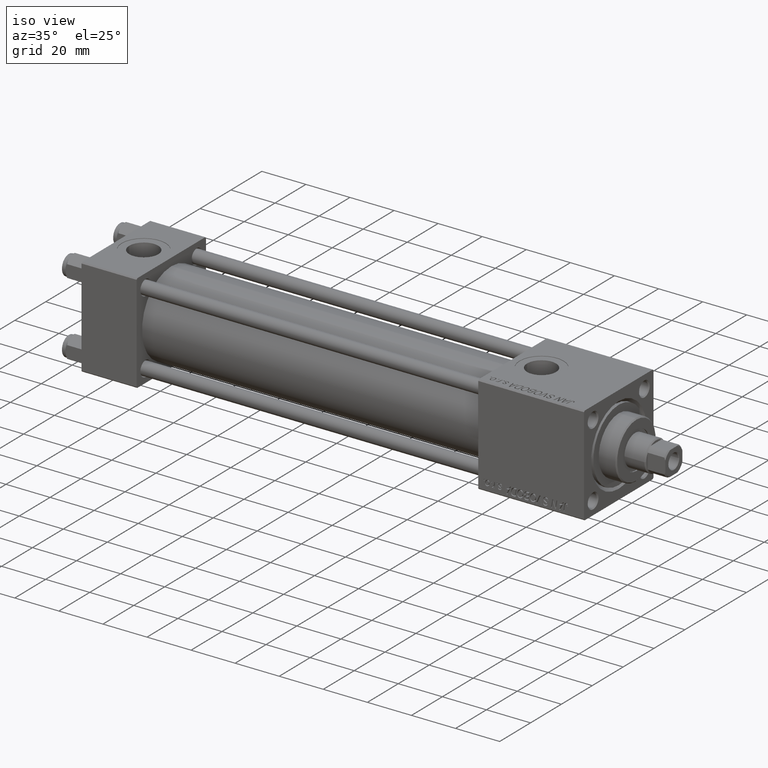
[diagram: clean part render]
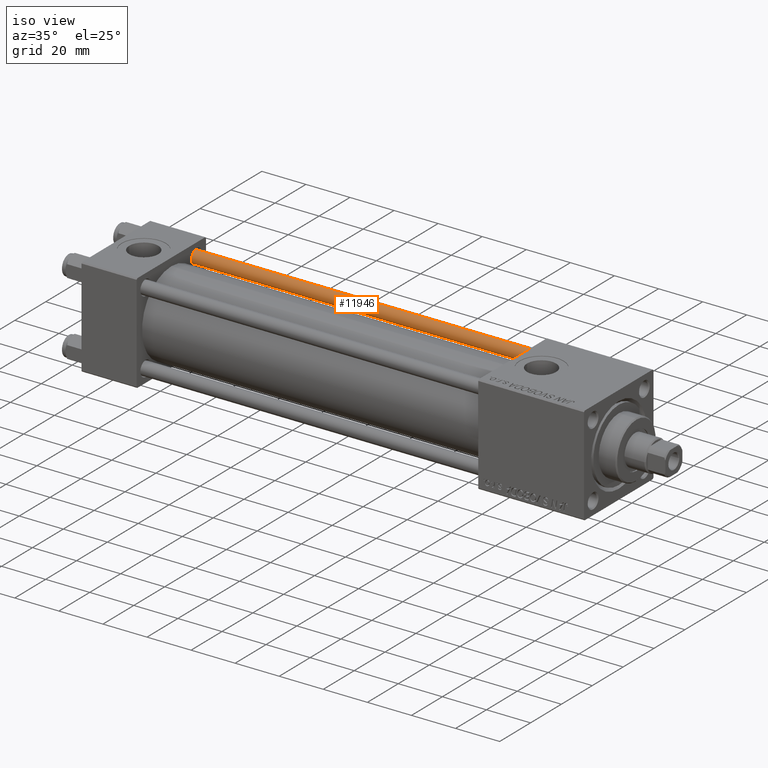
[diagram: same view with one face highlighted and labeled with its STEP entity id]
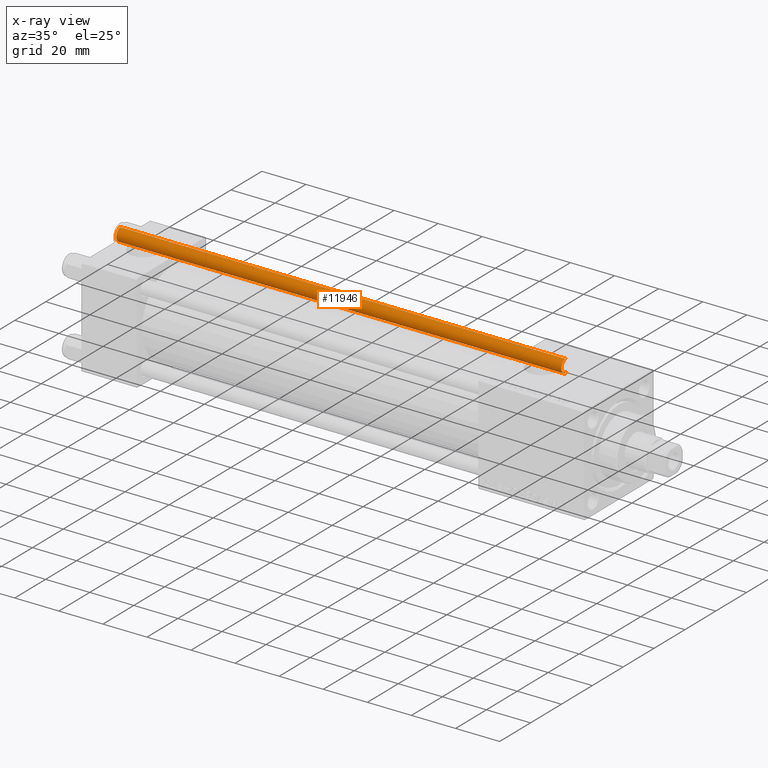
[diagram: x-ray of the same camera — body ghosted, the highlighted face saturated]
A machine part, iso view. The second image highlights one B-rep face of the part: STEP entity #11946.
The next image is the same camera in x-ray: the body ghosted, the highlighted face saturated — about 0% of this face is hidden behind the body in this view.
In plain terms, the highlighted cylindrical surface (edge-blend (fillet) strip) has radius 3 mm, axis along (-1, 0, 0).
Its self-contained STEP definition (entity closure, byte-faithful):
#386 = EDGE_CURVE ( 'NONE', #22499, #6661, #30112, .T. ) ;
#1240 = ORIENTED_EDGE ( 'NONE', *, *, #386, .F. ) ;
#1415 = AXIS2_PLACEMENT_3D ( 'NONE', #24226, #27928, #47474 ) ;
#3016 = ORIENTED_EDGE ( 'NONE', *, *, #41166, .T. ) ;
#5114 = CARTESIAN_POINT ( 'NONE',  ( -3.000000000000000444, 0.000000000000000000, 0.5000000000001114664 ) ) ;
#6661 = VERTEX_POINT ( 'NONE', #13414 ) ;
#6662 = DIRECTION ( 'NONE',  ( 0.000000000000000000, 0.000000000000000000, -1.000000000000000000 ) ) ;
#7156 = DIRECTION ( 'NONE',  ( 1.000000000000000000, 0.000000000000000000, 0.000000000000000000 ) ) ;
#11068 = DIRECTION ( 'NONE',  ( -0.000000000000000000, -0.000000000000000000, -1.000000000000000000 ) ) ;
#11946 = ADVANCED_FACE ( 'NONE', ( #52204 ), #12340, .T. ) ;
#12340 = CYLINDRICAL_SURFACE ( 'NONE', #1415, 3.000000000000000444 ) ;
#12487 = EDGE_CURVE ( 'NONE', #22499, #21866, #14888, .T. ) ;
#13216 = AXIS2_PLACEMENT_3D ( 'NONE', #23519, #6662, #22745 ) ;
#13414 = CARTESIAN_POINT ( 'NONE',  ( 3.000000000000000444, 3.673940397442059868E-16, 0.5000000000001114664 ) ) ;
#13914 = VECTOR ( 'NONE', #27429, 1000.000000000000000 ) ;
#14247 = CARTESIAN_POINT ( 'NONE',  ( 3.000000000000000444, 3.673940397442059868E-16, 203.0000000000000000 ) ) ;
#14291 = DIRECTION ( 'NONE',  ( -0.000000000000000000, -0.000000000000000000, 1.000000000000000000 ) ) ;
#14888 = CIRCLE ( 'NONE', #13216, 3.000000000000000444 ) ;
#16085 = CARTESIAN_POINT ( 'NONE',  ( -3.000000000000000444, 0.000000000000000000, 202.5000000000000853 ) ) ;
#16190 = ORIENTED_EDGE ( 'NONE', *, *, #38576, .T. ) ;
#17390 = AXIS2_PLACEMENT_3D ( 'NONE', #26193, #14291, #7156 ) ;
#21866 = VERTEX_POINT ( 'NONE', #16085 ) ;
#22499 = VERTEX_POINT ( 'NONE', #50833 ) ;
#22745 = DIRECTION ( 'NONE',  ( 1.000000000000000000, 0.000000000000000000, 0.000000000000000000 ) ) ;
#23519 = CARTESIAN_POINT ( 'NONE',  ( 0.000000000000000000, 0.000000000000000000, 202.5000000000000853 ) ) ;
#24226 = CARTESIAN_POINT ( 'NONE',  ( 0.000000000000000000, 0.000000000000000000, 203.0000000000000000 ) ) ;
#25689 = EDGE_LOOP ( 'NONE', ( #1240, #42023, #16190, #3016 ) ) ;
#26193 = CARTESIAN_POINT ( 'NONE',  ( 0.000000000000000000, 0.000000000000000000, 0.5000000000001114664 ) ) ;
#27429 = DIRECTION ( 'NONE',  ( -0.000000000000000000, -0.000000000000000000, -1.000000000000000000 ) ) ;
#27928 = DIRECTION ( 'NONE',  ( -0.000000000000000000, -0.000000000000000000, -1.000000000000000000 ) ) ;
#28756 = VERTEX_POINT ( 'NONE', #5114 ) ;
#30112 = LINE ( 'NONE', #14247, #35629 ) ;
#35629 = VECTOR ( 'NONE', #11068, 1000.000000000000000 ) ;
#38576 = EDGE_CURVE ( 'NONE', #21866, #28756, #52226, .T. ) ;
#39316 = CARTESIAN_POINT ( 'NONE',  ( -3.000000000000000444, 0.000000000000000000, 203.0000000000000000 ) ) ;
#40142 = CIRCLE ( 'NONE', #17390, 3.000000000000000444 ) ;
#41166 = EDGE_CURVE ( 'NONE', #28756, #6661, #40142, .T. ) ;
#42023 = ORIENTED_EDGE ( 'NONE', *, *, #12487, .T. ) ;
#47474 = DIRECTION ( 'NONE',  ( -1.000000000000000000, 0.000000000000000000, 0.000000000000000000 ) ) ;
#50833 = CARTESIAN_POINT ( 'NONE',  ( 3.000000000000000444, 3.673940397442059868E-16, 202.5000000000000853 ) ) ;
#52204 = FACE_OUTER_BOUND ( 'NONE', #25689, .T. ) ;
#52226 = LINE ( 'NONE', #39316, #13914 ) ;